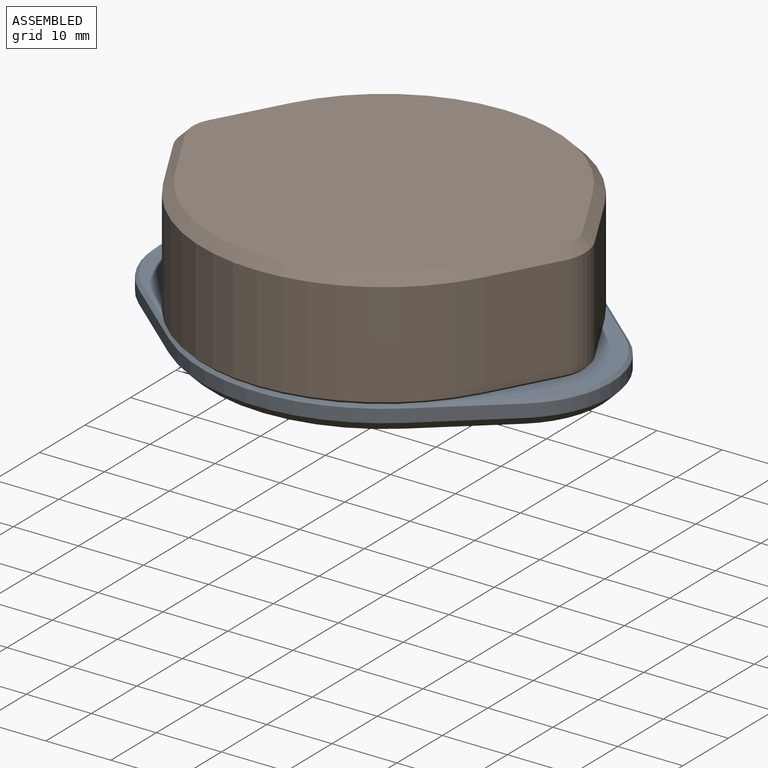
[diagram: assembled view]
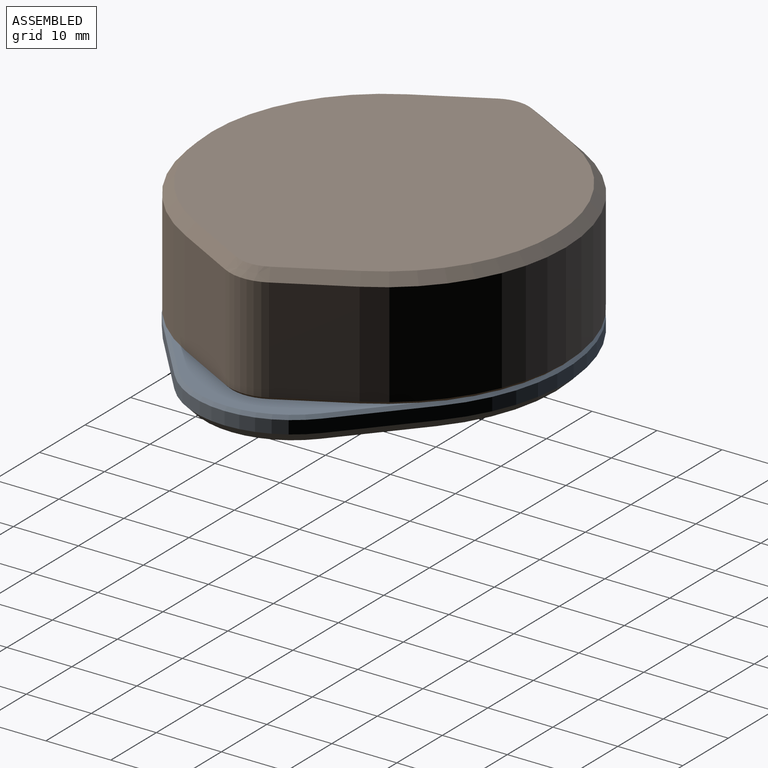
[diagram: assembled view, second angle]
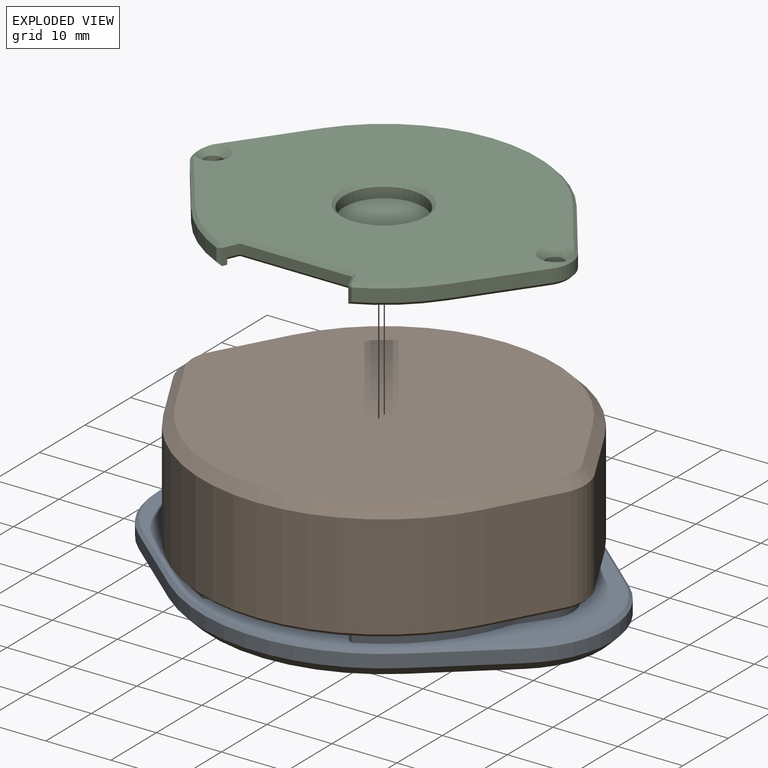
[diagram: exploded view]
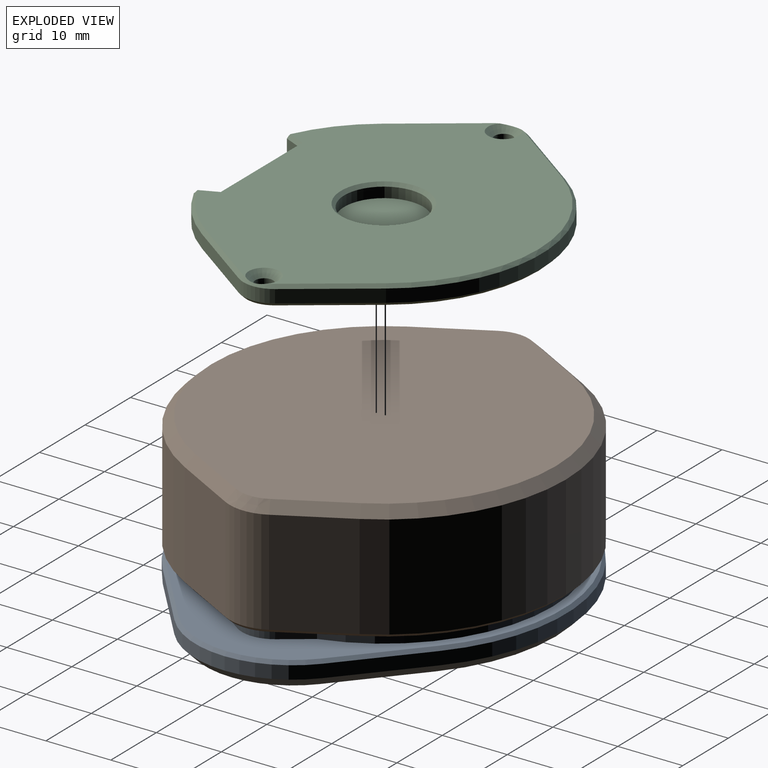
[diagram: exploded view, second angle]
ASSEMBLY  parts=3 mates=4
PART A: 82 faces, bbox 70x56x19 mm
  f0: plane 57x46.7mm, normal (0,0,1), area 137.8mm2, adj f1,f3,f4,f5,f20,f21,f22,f23
  f1: cylinder r=26mm len=17.47mm, axis (0,0,1), area 314.5mm2, adj f0,f19,f23,f29,f63,f70,f74
  f2: plane 12.4x12.21mm, normal (0,0,1), area 7.9mm2, adj f65,f67,f68,f69
  f3: cylinder r=24.5mm len=9.54mm, axis (0,0,1), area 31.3mm2, adj f0,f25,f36,f67
  f4: cylinder r=26mm len=50.66mm, axis (0,0,1), area 973.2mm2, adj f0,f19,f20,f22,f28,f30,f56,f58
  f5: cylinder r=26mm len=17.47mm, axis (0,0,1), area 314.5mm2, adj f0,f19,f25,f26,f60,f64,f68
  f6: plane 46.48x15.01mm, normal (0,0,1), area 27.3mm2, adj f54,f55,f56,f57
  f7: plane 12.4x12.21mm, normal (0,0,1), area 7.9mm2, adj f71,f73,f74,f75
  f8: cylinder r=23.5mm len=47mm, axis (0,0,1), area 1967.5mm2, adj f18,f19,f79,f80,f81
  f9: plane 11.55x9.88mm, normal (-0.65,-0.76,0), area 30.4mm2, adj f10,f16,f42,f48
  f10: cylinder r=28mm len=36.4mm, axis (0,0,-1), area 79.2mm2, adj f9,f11,f44,f50
  f11: plane 11.55x9.88mm, normal (0.65,-0.76,0), area 30.4mm2, adj f10,f12,f45,f52
  f12: cylinder r=15mm len=22.8mm, axis (0,0,-1), area 51.8mm2, adj f11,f13,f43,f53
  f13: plane 11.55x9.88mm, normal (0.65,0.76,0), area 30.4mm2, adj f12,f14,f41,f51
  f14: cylinder r=28mm len=36.4mm, axis (0,0,-1), area 79.2mm2, adj f13,f15,f39,f49
  f15: plane 11.55x9.88mm, normal (-0.65,0.76,0), area 30.4mm2, adj f14,f16,f38,f47
  f16: cylinder r=15mm len=22.8mm, axis (0,0,-1), area 51.8mm2, adj f9,f15,f40,f46
  f17: plane 67x53mm, normal (0,0,-1), area 933.9mm2, adj f38,f39,f40,f41,f42,f43,f44,f45
  f18: plane 47x47mm, normal (0,0,1), area 214.4mm2, adj f8,f76
  f19: plane 69x55mm, normal (0,0,1), area 590.6mm2, adj f1,f4,f5,f8,f26,f27,f28,f29
  f20: plane 7.07x5.07mm, normal (0.81,0.58,0), area 21.8mm2, adj f0,f4,f21,f54
  f21: cylinder r=24.5mm len=39.81mm, axis (0,0,1), area 116.2mm2, adj f0,f20,f22,f55
  f22: plane 7.07x5.07mm, normal (-0.81,0.58,0), area 21.8mm2, adj f0,f4,f21,f57
  f23: plane 7.07x5.07mm, normal (-0.81,-0.58,0), area 21.8mm2, adj f0,f1,f24,f75
  f24: cylinder r=24.5mm len=9.54mm, axis (0,0,1), area 31.3mm2, adj f0,f23,f37,f73
  f25: plane 7.07x5.07mm, normal (0.81,-0.58,0), area 21.8mm2, adj f0,f3,f5,f69
  f26: plane 11.5x4.3mm, normal (-0.81,0.58,0), area 60.8mm2, adj f5,f19,f27,f60
  f27: cylinder r=5mm len=11.5mm, axis (0,0,1), area 71.6mm2, adj f19,f26,f28,f59
  f28: plane 11.5x4.3mm, normal (-0.81,-0.58,0), area 60.8mm2, adj f4,f19,f27,f58
  f29: plane 11.5x4.3mm, normal (0.81,0.58,0), area 60.8mm2, adj f1,f19,f31,f63
  f30: plane 11.5x4.3mm, normal (0.81,-0.58,0), area 60.8mm2, adj f4,f19,f31,f61
  f31: cylinder r=5mm len=11.5mm, axis (0,0,1), area 71.6mm2, adj f19,f29,f30,f62
  f32: cylinder r=1.38mm len=13.5mm, axis (0,0,1), area 116.6mm2, adj f33,f77
  f33: plane 2.75x2.75mm, normal (0,0,1), area 5.9mm2, adj f32
  f34: cylinder r=1.38mm len=13.5mm, axis (0,0,1), area 116.6mm2, adj f35,f78
  f35: plane 2.75x2.75mm, normal (0,0,1), area 5.9mm2, adj f34
  f36: plane 14.5x1.36mm, normal (0.91,0.42,0), area 20.5mm2, adj f0,f3,f19,f64,f65,f79,f80
  f37: plane 14.5x1.36mm, normal (-0.91,0.42,0), area 20.5mm2, adj f0,f19,f24,f70,f71,f80,f81
  f38: plane 12.53x11.02mm, normal (-0.46,0.54,-0.71), area 32.2mm2, adj f15,f17,f39,f40
  f39: cone r=28mm half-angle=45deg, axis (0,0,1), area 81.8mm2, adj f14,f17,f38,f41
  f40: cone r=15mm half-angle=45deg, axis (0,0,1), area 52.2mm2, adj f16,f17,f38,f42
  f41: plane 12.53x11.02mm, normal (0.46,0.54,-0.71), area 32.2mm2, adj f13,f17,f39,f43
  f42: plane 12.53x11.02mm, normal (-0.46,-0.54,-0.71), area 32.2mm2, adj f9,f17,f40,f44
  f43: cone r=15mm half-angle=45deg, axis (0,0,1), area 52.2mm2, adj f12,f17,f41,f45
  f44: cone r=28mm half-angle=45deg, axis (0,0,1), area 81.8mm2, adj f10,f17,f42,f45
  f45: plane 12.53x11.02mm, normal (0.46,-0.54,-0.71), area 32.2mm2, adj f11,f17,f43,f44
  f46: cone r=15mm half-angle=45deg, axis (0,0,-1), area 18mm2, adj f16,f19,f47,f48
  f47: plane 11.88x10.26mm, normal (-0.46,0.54,0.71), area 10.7mm2, adj f15,f19,f46,f49
  f48: plane 11.88x10.26mm, normal (-0.46,-0.54,0.71), area 10.7mm2, adj f9,f19,f46,f50
  f49: cone r=28mm half-angle=45deg, axis (0,0,-1), area 27.8mm2, adj f14,f19,f47,f51
  f50: cone r=28mm half-angle=45deg, axis (0,0,-1), area 27.8mm2, adj f10,f19,f48,f52
  f51: plane 11.88x10.26mm, normal (0.46,0.54,0.71), area 10.7mm2, adj f13,f19,f49,f53
  f52: plane 11.88x10.26mm, normal (0.46,-0.54,0.71), area 10.7mm2, adj f11,f19,f50,f53
  f53: cone r=15mm half-angle=45deg, axis (0,0,-1), area 18mm2, adj f12,f19,f51,f52
  f54: plane 7.36x5.07mm, normal (0.57,0.41,0.71), area 5mm2, adj f6,f20,f55,f56
  f55: cone r=24.5mm half-angle=45deg, axis (0,0,1), area 33.2mm2, adj f6,f21,f54,f57
  f56: cone r=25.5mm half-angle=45deg, axis (0,0,-1), area 44.6mm2, adj f4,f6,f54,f57
  f57: plane 7.36x5.07mm, normal (-0.57,0.41,0.71), area 5mm2, adj f6,f22,f55,f56
  f58: plane 4.61x3.1mm, normal (-0.57,-0.41,0.71), area 3.3mm2, adj f0,f4,f28,f59
  f59: cone r=4.5mm half-angle=45deg, axis (0,0,-1), area 4.2mm2, adj f0,f27,f58,f60
  f60: plane 4.61x3.1mm, normal (-0.57,0.41,0.71), area 3.3mm2, adj f0,f5,f26,f59
  f61: plane 4.61x3.1mm, normal (0.57,-0.41,0.71), area 3.3mm2, adj f0,f4,f30,f62
  f62: cone r=5mm half-angle=45deg, axis (0,0,-1), area 4.2mm2, adj f0,f31,f61,f63
  f63: plane 4.61x3.1mm, normal (0.57,0.41,0.71), area 3.3mm2, adj f0,f1,f29,f62
  f64: plane 14.5x0.67mm, normal (0.33,0.94,0), area 10.4mm2, adj f5,f19,f36,f66
  f65: plane 0.91x0.88mm, normal (0.64,0.3,0.71), area 0.5mm2, adj f2,f36,f66,f67
  f66: plane 0.67x0.5mm, normal (0.27,0.77,0.57), area 0.2mm2, adj f64,f65,f68
  f67: cone r=24.5mm half-angle=45deg, axis (0,0,1), area 8.8mm2, adj f2,f3,f65,f69
  f68: cone r=25.5mm half-angle=45deg, axis (0,0,-1), area 14mm2, adj f2,f5,f66,f69
  f69: plane 7.36x5.07mm, normal (0.57,-0.41,0.71), area 5mm2, adj f2,f25,f67,f68
  f70: plane 14.5x0.67mm, normal (-0.33,0.94,0), area 10.4mm2, adj f1,f19,f37,f72
  f71: plane 0.91x0.88mm, normal (-0.64,0.3,0.71), area 0.5mm2, adj f7,f37,f72,f73
  f72: plane 0.67x0.5mm, normal (-0.27,0.77,0.57), area 0.2mm2, adj f70,f71,f74
  f73: cone r=24.5mm half-angle=45deg, axis (0,0,1), area 8.8mm2, adj f7,f24,f71,f75
  f74: cone r=25.5mm half-angle=45deg, axis (0,0,-1), area 14mm2, adj f1,f7,f72,f75
  f75: plane 7.36x5.07mm, normal (-0.57,-0.41,0.71), area 5mm2, adj f7,f23,f73,f74
  f76: cone r=22.5mm half-angle=45deg, axis (0,0,-1), area 98.9mm2, adj f17,f18
  f77: cone r=1.88mm half-angle=45deg, axis (0,0,1), area 7.2mm2, adj f0,f32
  f78: cone r=1.38mm half-angle=45deg, axis (0,0,1), area 7.2mm2, adj f0,f34
  f79: plane 12x0.67mm, normal (0.94,-0.33,0), area 8.2mm2, adj f8,f19,f36,f80
  f80: cone r=24mm half-angle=45deg, axis (0,0,1), area 90.5mm2, adj f0,f8,f36,f37,f79,f81
  f81: plane 12x0.67mm, normal (-0.94,-0.33,0), area 8.2mm2, adj f8,f19,f37,f80
PART B: 57 faces, bbox 61.9x56x18 mm
  f0: cylinder r=26.2mm len=50.4mm, axis (0,0,1), area 687.3mm2, adj f1,f13,f14,f29,f31,f32,f34,f37
  f1: plane 58.28x50.2mm, normal (0,0,1), area 1952.6mm2, adj f0,f12,f13,f14,f15,f16,f17,f18
  f2: plane 60.88x55mm, normal (0,0,1), area 151.1mm2, adj f41,f42,f43,f44,f45,f46,f47,f48
  f3: plane 16x10.08mm, normal (0.88,-0.48,0), area 184mm2, adj f4,f10,f25,f50
  f4: cylinder r=7mm len=16mm, axis (0,0,-1), area 112.2mm2, adj f3,f5,f23,f52
  f5: plane 16x10.08mm, normal (0.88,0.48,0), area 184mm2, adj f4,f6,f21,f54
  f6: cylinder r=28mm len=49.12mm, axis (0,0,-1), area 958.6mm2, adj f5,f7,f19,f56
  f7: plane 16x10.08mm, normal (-0.88,0.48,0), area 184mm2, adj f6,f8,f20,f55
  f8: cylinder r=7mm len=16mm, axis (0,0,-1), area 112.2mm2, adj f7,f9,f22,f53
  f9: plane 16x10.08mm, normal (-0.88,-0.48,0), area 184mm2, adj f8,f10,f24,f51
  f10: cylinder r=28mm len=49.12mm, axis (0,0,-1), area 958.6mm2, adj f3,f9,f26,f49
  f11: plane 58.88x53mm, normal (0,0,-1), area 2268.8mm2, adj f19,f20,f21,f22,f23,f24,f25,f26
  f12: cylinder r=5.2mm len=14.6mm, axis (0,0,1), area 94mm2, adj f1,f13,f18,f45
  f13: plane 14.6x4.15mm, normal (-0.81,-0.58,0), area 74.4mm2, adj f0,f1,f12,f43
  f14: plane 14.6x4.21mm, normal (0.81,-0.58,0), area 75.5mm2, adj f0,f1,f15,f42
  f15: cylinder r=5.2mm len=14.6mm, axis (0,0,1), area 94mm2, adj f1,f14,f16,f44
  f16: plane 14.6x4.25mm, normal (0.81,0.58,0), area 76.1mm2, adj f1,f15,f17,f46
  f17: cylinder r=26.2mm len=50.35mm, axis (0,0,1), area 987.1mm2, adj f1,f16,f18,f48
  f18: plane 14.6x4.18mm, normal (-0.81,0.58,0), area 74.9mm2, adj f1,f12,f17,f47
  f19: cone r=28mm half-angle=45deg, axis (0,0,1), area 123.7mm2, adj f6,f11,f20,f21
  f20: plane 10.81x6.84mm, normal (-0.62,0.34,-0.71), area 24.4mm2, adj f7,f11,f19,f22
  f21: plane 10.81x6.84mm, normal (0.62,0.34,-0.71), area 24.4mm2, adj f5,f11,f19,f23
  f22: cone r=7mm half-angle=45deg, axis (0,0,1), area 13.3mm2, adj f8,f11,f20,f24
  f23: cone r=5.5mm half-angle=45deg, axis (0,0,1), area 13.3mm2, adj f4,f11,f21,f25
  f24: plane 10.81x6.84mm, normal (-0.62,-0.34,-0.71), area 24.4mm2, adj f9,f11,f22,f26
  f25: plane 10.81x6.84mm, normal (0.62,-0.34,-0.71), area 24.4mm2, adj f3,f11,f23,f26
  f26: cone r=28mm half-angle=45deg, axis (0,0,1), area 123.7mm2, adj f10,f11,f24,f25
  f27: cylinder r=6.1mm len=12.2mm, axis (0,0,1), area 61.3mm2, adj f28,f40
  f28: plane 12.2x12.2mm, normal (0,0,1), area 116.9mm2, adj f27
  f29: plane 13.5x4.2mm, normal (-0.92,-0.4,0), area 62mm2, adj f0,f1,f33,f34
  f30: plane 16.41x13.5mm, normal (0,-1,0), area 221.5mm2, adj f1,f33,f36,f39
  f31: plane 13.5x4.2mm, normal (0.92,-0.4,0), area 62mm2, adj f0,f1,f37,f39
  f32: plane 20.08x6.2mm, normal (0,0,1), area 103.6mm2, adj f0,f34,f36,f37
  f33: plane 13.5x0.46mm, normal (-0.55,-0.84,0), area 7.4mm2, adj f1,f29,f30,f35
  f34: plane 4.4x2.3mm, normal (-0.65,-0.28,0.71), area 3.2mm2, adj f0,f29,f32,f35
  f35: plane 0.5x0.5mm, normal (-0.42,-0.64,0.64), area 0.2mm2, adj f33,f34,f36
  f36: plane 16.41x0.5mm, normal (0,-0.71,0.71), area 11.6mm2, adj f30,f32,f35,f38
  f37: plane 4.4x2.3mm, normal (0.65,-0.28,0.71), area 3.2mm2, adj f0,f31,f32,f38
  f38: plane 0.5x0.5mm, normal (0.42,-0.64,0.64), area 0.2mm2, adj f36,f37,f39
  f39: plane 13.5x0.46mm, normal (0.55,-0.84,0), area 7.4mm2, adj f1,f30,f31,f38
  f40: cone r=6.1mm half-angle=45deg, axis (0,0,1), area 28.2mm2, adj f1,f27
  f41: cone r=26.2mm half-angle=45deg, axis (0,0,1), area 48.3mm2, adj f0,f2,f42,f43
  f42: plane 4.43x3.41mm, normal (0.58,-0.41,0.71), area 3.6mm2, adj f2,f14,f41,f44
  f43: plane 4.37x3.36mm, normal (-0.58,-0.41,0.71), area 3.6mm2, adj f2,f13,f41,f45
  f44: cone r=5.2mm half-angle=45deg, axis (0,0,1), area 4.8mm2, adj f2,f15,f42,f46
  f45: cone r=5.7mm half-angle=45deg, axis (0,0,1), area 4.8mm2, adj f2,f12,f43,f47
  f46: plane 4.47x3.43mm, normal (0.58,0.41,0.71), area 3.7mm2, adj f2,f16,f44,f48
  f47: plane 4.4x3.39mm, normal (-0.58,0.41,0.71), area 3.6mm2, adj f2,f18,f45,f48
  f48: cone r=26.2mm half-angle=45deg, axis (0,0,1), area 48.2mm2, adj f2,f17,f46,f47
  f49: cone r=27.5mm half-angle=45deg, axis (0,0,-1), area 42mm2, adj f2,f10,f50,f51
  f50: plane 10.32x5.96mm, normal (0.62,-0.34,0.71), area 8.1mm2, adj f2,f3,f49,f52
  f51: plane 10.32x5.96mm, normal (-0.62,-0.34,0.71), area 8.1mm2, adj f2,f9,f49,f53
  f52: cone r=7mm half-angle=45deg, axis (0,0,-1), area 4.8mm2, adj f2,f4,f50,f54
  f53: cone r=6.5mm half-angle=45deg, axis (0,0,-1), area 4.8mm2, adj f2,f8,f51,f55
  f54: plane 10.32x5.96mm, normal (0.62,0.34,0.71), area 8.1mm2, adj f2,f5,f52,f56
  f55: plane 10.32x5.96mm, normal (-0.62,0.34,0.71), area 8.1mm2, adj f2,f7,f53,f56
  f56: cone r=27.5mm half-angle=45deg, axis (0,0,-1), area 42mm2, adj f2,f6,f54,f55
PART C: 51 faces, bbox 57.6x46.5x3 mm
  f0: plane 55.89x45.32mm, normal (0,0,1), area 1630mm2, adj f25,f28,f29,f32,f34,f35,f37,f38
  f1: cylinder r=24.3mm len=9.35mm, axis (0,0,-1), area 24.6mm2, adj f7,f24,f27,f28
  f2: cylinder r=23mm len=46mm, axis (0,0,-1), area 62.8mm2, adj f3,f4,f17,f18,f45,f47
  f3: plane 46x43.78mm, normal (0,0,-1), area 1595.1mm2, adj f2,f45,f46,f47
  f4: plane 56.6x45.52mm, normal (0,0,-1), area 194.2mm2, adj f2,f13,f14,f17,f18,f20,f21,f22
  f5: plane 11.37x8.16mm, normal (-0.81,0.58,0), area 28mm2, adj f6,f12,f21,f32
  f6: cylinder r=4.8mm len=5.6mm, axis (0,0,-1), area 11.9mm2, adj f5,f7,f20,f29
  f7: plane 11.37x8.16mm, normal (-0.81,-0.58,0), area 28mm2, adj f1,f6,f22,f25
  f8: cylinder r=24.3mm len=9.35mm, axis (0,0,-1), area 24.6mm2, adj f9,f36,f39,f44
  f9: plane 11.37x8.16mm, normal (0.81,-0.58,0), area 28mm2, adj f8,f10,f33,f43
  f10: cylinder r=4.8mm len=5.6mm, axis (0,0,-1), area 11.9mm2, adj f9,f11,f30,f41
  f11: plane 11.37x8.16mm, normal (0.81,0.58,0), area 28mm2, adj f10,f12,f26,f38
  f12: cylinder r=24.3mm len=39.49mm, axis (0,0,-1), area 92.2mm2, adj f5,f11,f23,f35
  f13: cylinder r=1.38mm len=2.75mm, axis (0,0,-1), area 17.3mm2, adj f4,f49
  f14: cylinder r=1.38mm len=2.75mm, axis (0,0,-1), area 17.3mm2, adj f4,f50
  f15: cylinder r=6.1mm len=12.2mm, axis (0,0,1), area 61.3mm2, adj f16,f48
  f16: plane 12.2x12.2mm, normal (0,0,1), area 116.9mm2, adj f15
  f17: plane 2.5x2.42mm, normal (0.92,-0.4,0), area 4.7mm2, adj f2,f4,f19,f27,f34,f47
  f18: plane 2.5x2.42mm, normal (-0.92,-0.4,0), area 4.7mm2, adj f2,f4,f19,f39,f40,f45
  f19: plane 17.32x1.5mm, normal (0,-1,0), area 26mm2, adj f17,f18,f37,f46
  f20: cone r=4.8mm half-angle=45deg, axis (0,0,1), area 4mm2, adj f4,f6,f21,f22
  f21: plane 11.66x8.56mm, normal (-0.57,0.41,-0.71), area 9.9mm2, adj f4,f5,f20,f23
  f22: plane 11.66x8.56mm, normal (-0.57,-0.41,-0.71), area 9.9mm2, adj f4,f7,f20,f24
  f23: cone r=24.3mm half-angle=45deg, axis (0,0,1), area 32.3mm2, adj f4,f12,f21,f26
  f24: cone r=24.3mm half-angle=45deg, axis (0,0,1), area 8.8mm2, adj f1,f4,f22,f27
  f25: plane 11.66x8.56mm, normal (-0.57,-0.41,0.71), area 9.9mm2, adj f0,f7,f28,f29
  f26: plane 11.66x8.56mm, normal (0.57,0.41,-0.71), area 9.9mm2, adj f4,f11,f23,f30
  f27: plane 2.51x0.68mm, normal (0.35,-0.94,0), area 1.6mm2, adj f1,f4,f17,f24,f31
  f28: cone r=23.8mm half-angle=45deg, axis (0,0,-1), area 8.6mm2, adj f0,f1,f25,f31
  f29: cone r=4.3mm half-angle=45deg, axis (0,0,-1), area 3.4mm2, adj f0,f6,f25,f32,f50
  f30: cone r=4.3mm half-angle=45deg, axis (0,0,1), area 4mm2, adj f4,f10,f26,f33
  f31: plane 0.67x0.5mm, normal (0.29,-0.77,0.57), area 0.2mm2, adj f27,f28,f34
  f32: plane 11.66x8.56mm, normal (-0.57,0.41,0.71), area 9.9mm2, adj f0,f5,f29,f35
  f33: plane 11.66x8.56mm, normal (0.57,-0.41,-0.71), area 9.9mm2, adj f4,f9,f30,f36
  f34: plane 2.92x1.51mm, normal (0.65,-0.28,0.71), area 2mm2, adj f0,f17,f31,f37
  f35: cone r=23.8mm half-angle=45deg, axis (0,0,-1), area 32.3mm2, adj f0,f12,f32,f38
  f36: cone r=24.3mm half-angle=45deg, axis (0,0,1), area 8.8mm2, adj f4,f8,f33,f39
  f37: plane 17.98x0.5mm, normal (0,-0.71,0.71), area 12.5mm2, adj f0,f19,f34,f40
  f38: plane 11.66x8.56mm, normal (0.57,0.41,0.71), area 9.9mm2, adj f0,f11,f35,f41
  f39: plane 2.51x0.68mm, normal (-0.35,-0.94,0), area 1.6mm2, adj f4,f8,f18,f36,f42
  f40: plane 2.92x1.51mm, normal (-0.65,-0.28,0.71), area 2mm2, adj f0,f18,f37,f42
  f41: cone r=4.8mm half-angle=45deg, axis (0,0,-1), area 3.4mm2, adj f0,f10,f38,f43,f49
  f42: plane 0.67x0.5mm, normal (-0.29,-0.77,0.57), area 0.2mm2, adj f39,f40,f44
  f43: plane 11.66x8.56mm, normal (0.57,-0.41,0.71), area 9.9mm2, adj f0,f9,f41,f44
  f44: cone r=23.8mm half-angle=45deg, axis (0,0,-1), area 8.6mm2, adj f0,f8,f42,f43
  f45: plane 2.19x1.19mm, normal (-0.65,-0.28,-0.71), area 1.4mm2, adj f2,f3,f18,f46
  f46: plane 17.98x0.5mm, normal (0,-0.71,-0.71), area 12.5mm2, adj f3,f19,f45,f47
  f47: plane 2.19x1.19mm, normal (0.65,-0.28,-0.71), area 1.4mm2, adj f2,f3,f17,f46
  f48: cone r=6.1mm half-angle=45deg, axis (0,0,1), area 28.2mm2, adj f0,f15
  f49: cone r=1.38mm half-angle=45deg, axis (0,0,1), area 16mm2, adj f0,f13,f41
  f50: cone r=2.38mm half-angle=45deg, axis (0,0,1), area 16mm2, adj f0,f14,f29
PLACE A rot(axis=(0,0,1),180deg) t=(0,0,-0.5)mm
PLACE B rot(axis=(1,0,0),180deg) t=(0,0,21.4)mm
PLACE C t=(0,0,15.5)mm
MATE revolute A.f34 <-> C.f13  axis (0,0,1) through (26.3,0,15.5)mm
MATE revolute B.f27 <-> C.f15  axis (0,0,-1) through (0,0,18.5)mm
MATE planar B.f1 <-> C.f0  axis (0,0,-1) through (-0.01,1.35,18.5)mm
MATE planar A.f34 <-> C.f14  axis (0,0,1) through (26.3,0,15.5)mm
